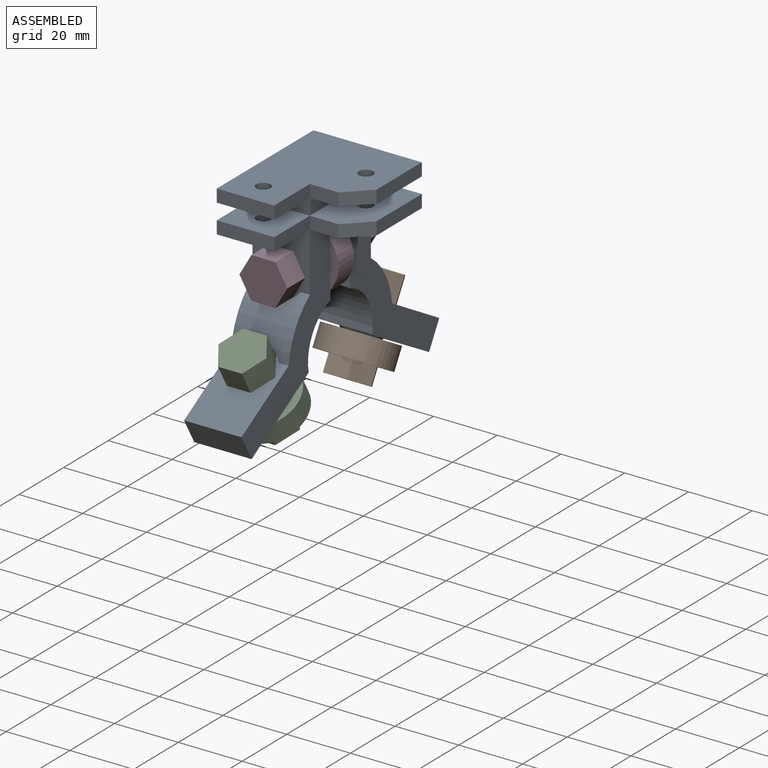
[diagram: assembled view]
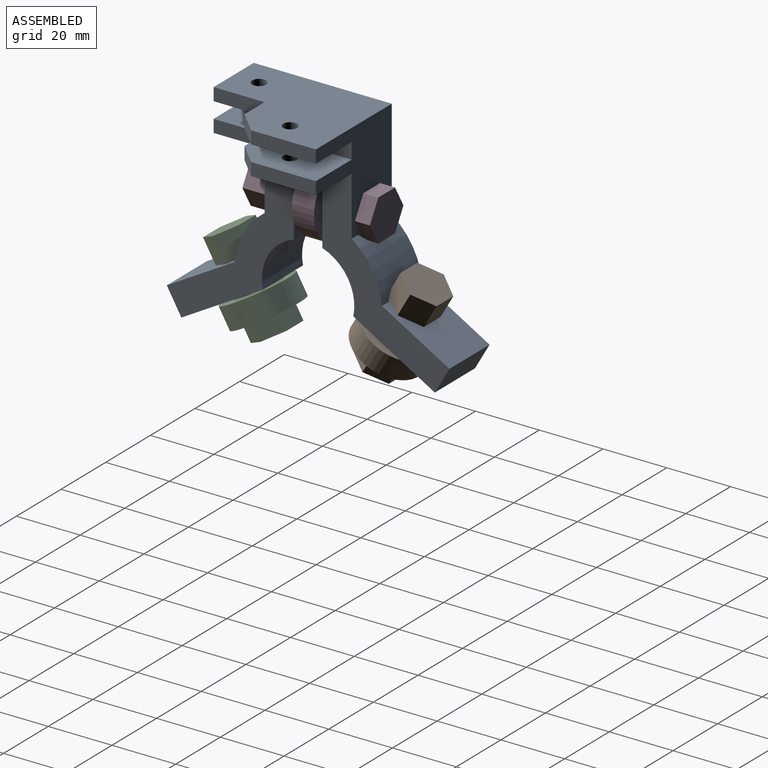
[diagram: assembled view, second angle]
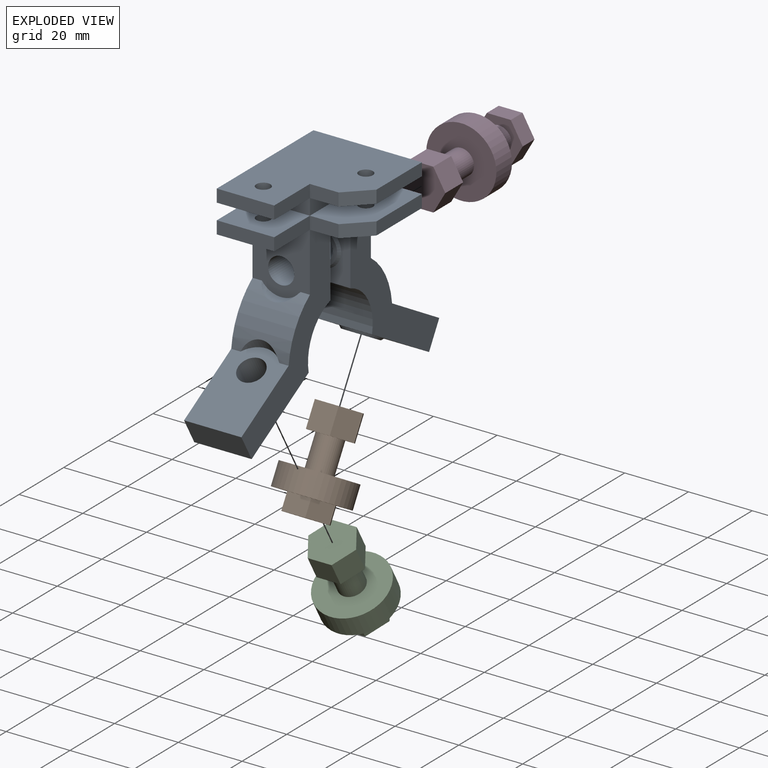
[diagram: exploded view]
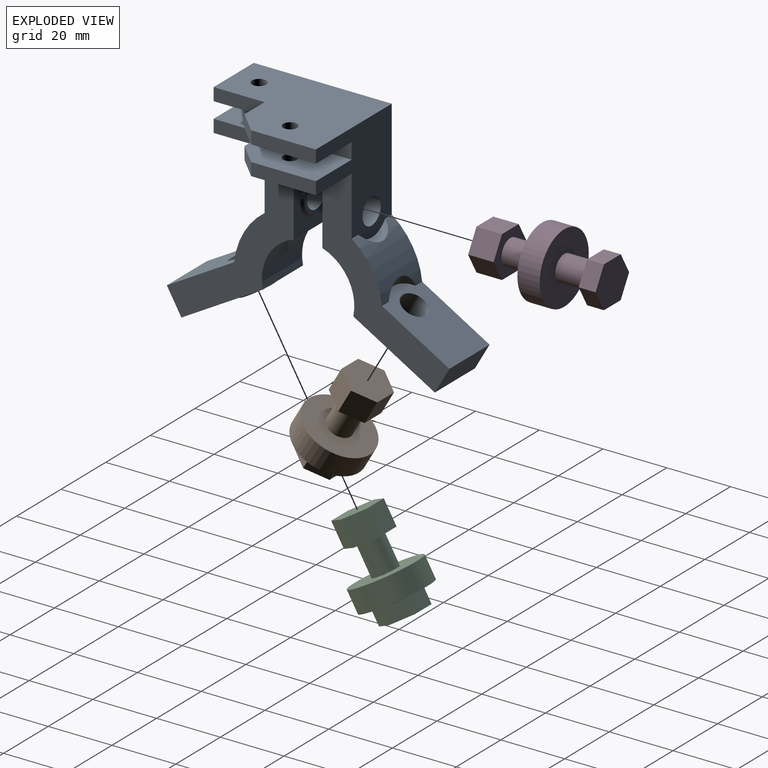
[diagram: exploded view, second angle]
ASSEMBLY  parts=4 mates=3
PART A: 56 faces, bbox 88.6x68.1x34 mm
  f0: cylinder r=23.3mm len=18mm, axis (0,0,-1), area 272.8mm2, adj f5,f10,f11,f19,f41,f48
  f1: cylinder r=23.3mm len=18mm, axis (0,0,-1), area 272.8mm2, adj f5,f8,f9,f19,f40,f45
  f2: plane 18x5mm, normal (1,0,0), area 90mm2, adj f3,f19,f28,f30
  f3: plane 27.3x5mm, normal (0,0,1), area 136.5mm2, adj f2,f9,f23,f37
  f4: plane 9x4mm, normal (1,0,0), area 36mm2, adj f22,f23,f24,f54
  f5: plane 88.65x55.05mm, normal (0,0,1), area 1242.3mm2, adj f0,f1,f6,f7,f8,f9,f10,f11
  f6: plane 25.56x18mm, normal (0.5,0.87,0), area 414.4mm2, adj f5,f7,f18,f19,f52
  f7: plane 18x7.92mm, normal (-0.87,0.5,0), area 164.7mm2, adj f5,f6,f8,f19
  f8: plane 23.82x18mm, normal (-0.5,-0.87,0), area 412.9mm2, adj f1,f5,f7,f19,f44,f45
  f9: plane 34.5x34mm, normal (-1,0,0), area 666.9mm2, adj f1,f3,f5,f19,f20,f22,f23,f29
  f10: plane 21.5x18mm, normal (1,0,0), area 304.9mm2, adj f0,f5,f19,f27,f39,f41
  f11: plane 23.82x18mm, normal (0.5,-0.87,0), area 412.9mm2, adj f0,f5,f12,f19,f47,f48
  f12: plane 18x7.92mm, normal (0.87,0.5,0), area 164.7mm2, adj f5,f11,f13,f19
  f13: plane 25.56x18mm, normal (-0.5,0.87,0), area 414.4mm2, adj f5,f12,f14,f19,f53
  f14: cylinder r=14.5mm len=18mm, axis (0,0,-1), area 381.9mm2, adj f5,f13,f15,f19
  f15: plane 22.52x18mm, normal (-1,0,0), area 288.4mm2, adj f5,f14,f16,f19,f51
  f16: plane 18x9mm, normal (0,1,0), area 162mm2, adj f5,f15,f17,f19
  f17: plane 22.52x18mm, normal (1,0,0), area 288.4mm2, adj f5,f16,f18,f19,f50
  f18: cylinder r=14.5mm len=18mm, axis (0,0,-1), area 381.9mm2, adj f5,f6,f17,f19
  f19: plane 88.65x68.05mm, normal (0,0,-1), area 1725.2mm2, adj f0,f1,f2,f6,f7,f8,f9,f10
  f20: plane 20.3x4mm, normal (0,0,1), area 81.2mm2, adj f9,f22,f23,f54
  f21: cylinder r=2.2mm len=4.4mm, axis (0,-1,0), area 55.3mm2, adj f22,f23
  f22: plane 27.3x16mm, normal (0,1,0), area 397.1mm2, adj f4,f5,f9,f20,f21,f54
  f23: plane 27.3x16mm, normal (0,-1,0), area 397.1mm2, adj f3,f4,f9,f20,f21,f54
  f24: plane 16x4mm, normal (0,0,1), area 64mm2, adj f4,f25,f27,f28
  f25: plane 18x4mm, normal (1,0,0), area 72mm2, adj f19,f24,f27,f28
  f26: cylinder r=2.2mm len=4.4mm, axis (0,-1,0), area 55.3mm2, adj f27,f28
  f27: plane 18x16mm, normal (0,1,0), area 272.8mm2, adj f10,f19,f24,f25,f26
  f28: plane 18x16mm, normal (0,-1,0), area 272.8mm2, adj f2,f19,f24,f25,f26
  f29: plane 43.3x34mm, normal (0,-1,0), area 1161.3mm2, adj f9,f19,f31,f32,f33,f34,f35,f36
  f30: plane 18x16mm, normal (0,1,0), area 272.8mm2, adj f2,f19,f31,f32,f36
  f31: plane 18x4mm, normal (1,0,0), area 72mm2, adj f19,f29,f30,f32
  f32: plane 16x4mm, normal (0,0,1), area 64mm2, adj f29,f30,f31,f33
  f33: plane 9x4mm, normal (1,0,0), area 36mm2, adj f29,f32,f37,f55
  f34: cylinder r=2.2mm len=4.4mm, axis (0,1,0), area 55.3mm2, adj f29,f37
  f35: plane 20.3x4mm, normal (0,0,1), area 81.2mm2, adj f9,f29,f37,f55
  f36: cylinder r=2.2mm len=4.4mm, axis (0,1,0), area 55.3mm2, adj f29,f30
  f37: plane 27.3x16mm, normal (0,1,0), area 397.1mm2, adj f3,f9,f33,f34,f35,f55
  f38: cylinder r=4.1mm len=9.9mm, axis (-1,0,0), area 255mm2, adj f9,f42
  f39: cylinder r=4.1mm len=9.9mm, axis (-1,0,0), area 255mm2, adj f10,f43
  f40: cylinder r=7.5mm len=12.12mm, axis (1,0,0), area 33.5mm2, adj f1,f9
  f41: cylinder r=7.5mm len=12.12mm, axis (-1,0,0), area 33.5mm2, adj f0,f10
  f42: plane 10.7x10.7mm, normal (1,0,0), area 37.1mm2, adj f38,f50
  f43: plane 10.7x10.7mm, normal (-1,0,0), area 37.1mm2, adj f39,f51
  f44: cylinder r=4.1mm len=12.67mm, axis (-0.5,-0.87,0), area 255mm2, adj f8,f46
  f45: cylinder r=7.5mm len=12.12mm, axis (0.5,0.87,0), area 33.5mm2, adj f1,f8
  f46: plane 10.7x9.27mm, normal (0.5,0.87,0), area 37.1mm2, adj f44,f52
  f47: cylinder r=4.1mm len=12.67mm, axis (0.5,-0.87,0), area 255mm2, adj f11,f49
  f48: cylinder r=7.5mm len=12.12mm, axis (-0.5,0.87,0), area 33.5mm2, adj f0,f11
  f49: plane 10.7x9.27mm, normal (-0.5,0.87,0), area 37.1mm2, adj f47,f53
  f50: cone r=6.1mm half-angle=45deg, axis (-1,0,0), area 38.2mm2, adj f17,f42
  f51: cone r=6.1mm half-angle=45deg, axis (1,0,0), area 38.2mm2, adj f15,f43
  f52: cone r=6.1mm half-angle=45deg, axis (-0.5,-0.87,0), area 38.2mm2, adj f6,f46
  f53: cone r=6.1mm half-angle=45deg, axis (0.5,-0.87,0), area 38.2mm2, adj f13,f49
  f54: plane 7x7mm, normal (0.71,0,0.71), area 39.6mm2, adj f4,f20,f22,f23
  f55: plane 7x7mm, normal (0.71,0,0.71), area 39.6mm2, adj f29,f33,f35,f37
PART B: 19 faces, bbox 22x22x30 mm
  f0: cylinder r=4mm len=9.7mm, axis (0,0,-1), area 243.8mm2, adj f1,f11
  f1: plane 22x22mm, normal (0,0,1), area 329.9mm2, adj f0,f3
  f2: plane 22x22mm, normal (0,0,-1), area 233.8mm2, adj f3,f5,f6,f7,f8,f9,f10
  f3: cylinder r=11mm len=22mm, axis (0,0,-1), area 483.8mm2, adj f1,f2
  f4: plane 15.01x13mm, normal (0,0,-1), area 146.4mm2, adj f5,f6,f7,f8,f9,f10
  f5: plane 6.5x5.3mm, normal (0.87,0.5,0), area 39.8mm2, adj f2,f4,f6,f10
  f6: plane 6.5x5.3mm, normal (0.87,-0.5,0), area 39.8mm2, adj f2,f4,f5,f7
  f7: plane 7.51x5.3mm, normal (0,-1,0), area 39.8mm2, adj f2,f4,f6,f8
  f8: plane 6.5x5.3mm, normal (-0.87,-0.5,0), area 39.8mm2, adj f2,f4,f7,f9
  f9: plane 6.5x5.3mm, normal (-0.87,0.5,0), area 39.8mm2, adj f2,f4,f8,f10
  f10: plane 7.51x5.3mm, normal (0,1,0), area 39.8mm2, adj f2,f4,f5,f9
  f11: plane 15.01x13mm, normal (0,0,-1), area 96.1mm2, adj f0,f12,f13,f14,f15,f16,f17
  f12: plane 8x7.51mm, normal (0,1,0), area 60mm2, adj f11,f13,f16,f18
  f13: plane 8x6.5mm, normal (-0.87,0.5,0), area 60mm2, adj f11,f12,f14,f18
  f14: plane 8x6.5mm, normal (-0.87,-0.5,0), area 60mm2, adj f11,f13,f15,f18
  f15: plane 8x7.51mm, normal (0,-1,0), area 60mm2, adj f11,f14,f17,f18
  f16: plane 8x6.5mm, normal (0.87,0.5,0), area 60mm2, adj f11,f12,f17,f18
  f17: plane 8x6.5mm, normal (0.87,-0.5,0), area 60mm2, adj f11,f15,f16,f18
  f18: plane 15.01x13mm, normal (0,0,1), area 146.4mm2, adj f12,f13,f14,f15,f16,f17
PART C: same geometry as B
PART D: 21 faces, bbox 22x22x40 mm
  f0: cylinder r=4mm len=9.9mm, axis (0,0,-1), area 248.8mm2, adj f10,f13
  f1: cylinder r=4mm len=9.8mm, axis (0,0,-1), area 246.3mm2, adj f8,f11
  f2: plane 7.51x5.3mm, normal (0,1,0), area 39.8mm2, adj f3,f7,f8,f9
  f3: plane 6.5x5.3mm, normal (-0.87,0.5,0), area 39.8mm2, adj f2,f4,f8,f9
  f4: plane 6.5x5.3mm, normal (-0.87,-0.5,0), area 39.8mm2, adj f3,f5,f8,f9
  f5: plane 7.51x5.3mm, normal (0,-1,0), area 39.8mm2, adj f4,f6,f8,f9
  f6: plane 6.5x5.3mm, normal (0.87,-0.5,0), area 39.8mm2, adj f5,f7,f8,f9
  f7: plane 6.5x5.3mm, normal (0.87,0.5,0), area 39.8mm2, adj f2,f6,f8,f9
  f8: plane 15.01x13mm, normal (0,0,1), area 96.1mm2, adj f1,f2,f3,f4,f5,f6,f7
  f9: plane 15.01x13mm, normal (0,0,-1), area 146.4mm2, adj f2,f3,f4,f5,f6,f7
  f10: plane 22x22mm, normal (0,0,1), area 329.9mm2, adj f0,f12
  f11: plane 22x22mm, normal (0,0,-1), area 329.9mm2, adj f1,f12
  f12: cylinder r=11mm len=22mm, axis (0,0,-1), area 483.8mm2, adj f10,f11
  f13: plane 15.01x13mm, normal (0,0,-1), area 96.1mm2, adj f0,f14,f15,f16,f17,f18,f19
  f14: plane 8x7.51mm, normal (0,1,0), area 60mm2, adj f13,f15,f18,f20
  f15: plane 8x6.5mm, normal (-0.87,0.5,0), area 60mm2, adj f13,f14,f16,f20
  f16: plane 8x6.5mm, normal (-0.87,-0.5,0), area 60mm2, adj f13,f15,f17,f20
  f17: plane 8x7.51mm, normal (0,-1,0), area 60mm2, adj f13,f16,f19,f20
  f18: plane 8x6.5mm, normal (0.87,0.5,0), area 60mm2, adj f13,f14,f19,f20
  f19: plane 8x6.5mm, normal (0.87,-0.5,0), area 60mm2, adj f13,f17,f18,f20
  f20: plane 15.01x13mm, normal (0,0,1), area 146.4mm2, adj f14,f15,f16,f17,f18,f19
PLACE A rot(axis=(-0.58,0.58,-0.58),120deg) t=(-108.1,58.46,-51.05)mm
PLACE B rot(axis=(-1,0,0),30deg) t=(-99.1,74.46,-69.94)mm
PLACE C rot(axis=(1,0,0),30deg) t=(-99.1,42.46,-69.94)mm
PLACE D rot(axis=(0,-0.71,0.71),180deg) t=(-99.1,76.81,-27.75)mm
MATE fastened B.f0 <-> A.f45  axis (0,-0.5,-0.87) through (-99.1,85.46,-50.88)mm
MATE fastened C.f0 <-> A.f48  axis (0,0.5,-0.87) through (-99.1,31.46,-50.88)mm
MATE fastened D.f0 <-> A.f38  axis (0,1,0) through (-99.1,44.81,-27.75)mm
